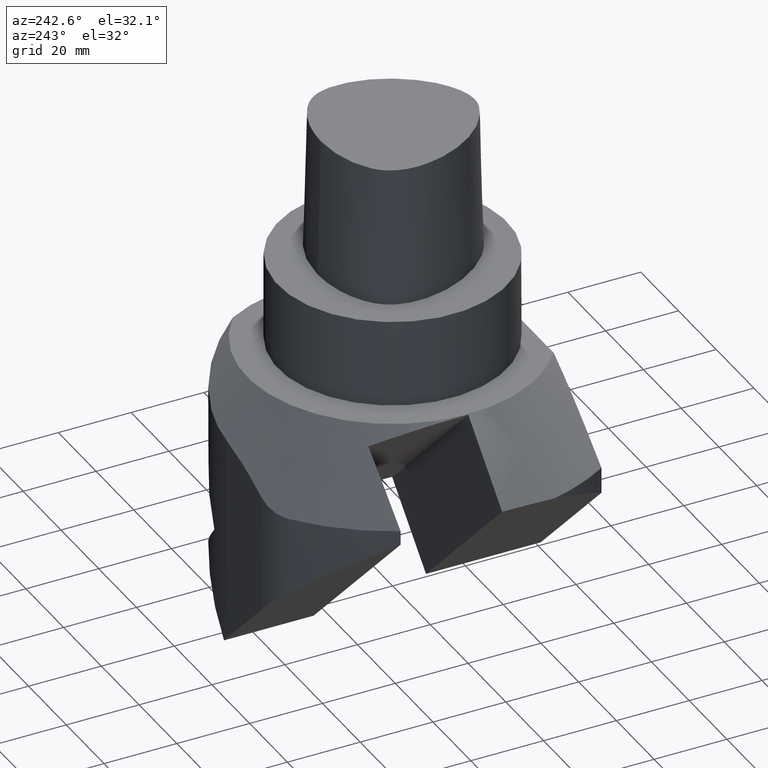
[diagram: clean part render]
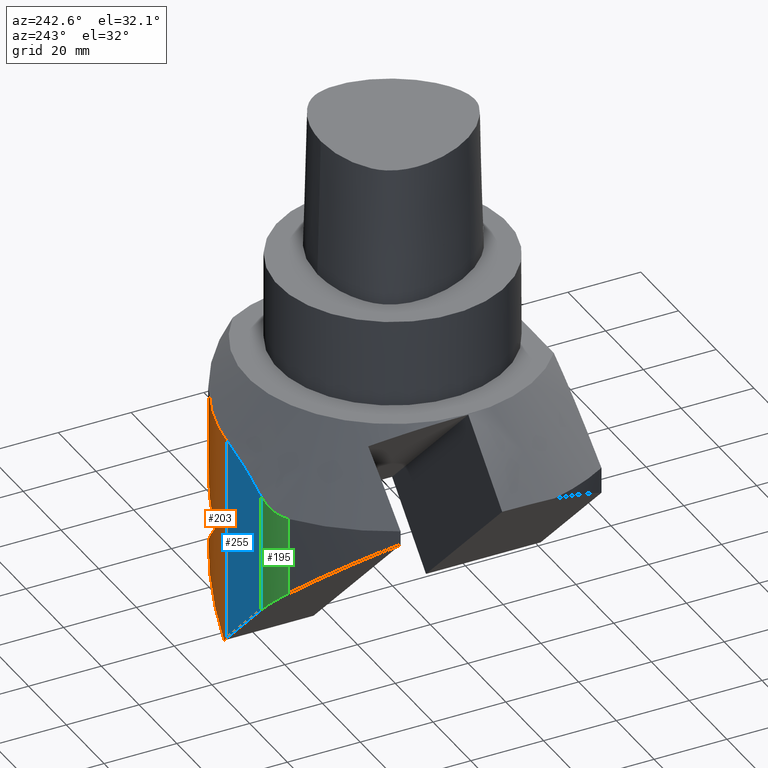
[diagram: same view with three faces highlighted in distinct colors, each labeled with its STEP entity id]
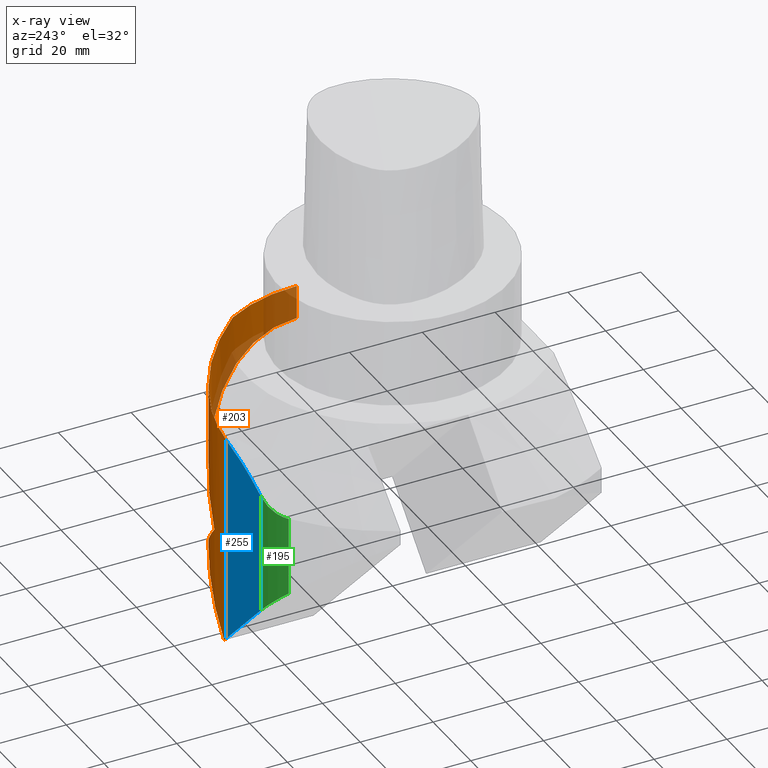
[diagram: x-ray of the same camera — body ghosted, the three highlighted faces saturated]
A machine part, auxiliary view with three faces highlighted in distinct colors.
The next image is the same camera in x-ray (body ghosted, the three faces saturated) — at least one of them is partly hidden behind the body in this view.
Their STEP definitions:

[orange] entity #203 — the highlighted cylindrical surface (partial cylindrical patch) has radius 40 mm, axis along (0, 0, 1).
#119=EDGE_CURVE('Unnamed[1]',#338,#339,#340,.T.);
#141=EDGE_CURVE('Unnamed[1]',#378,#379,#380,.T.);
#149=EDGE_CURVE('Unnamed[1]',#390,#338,#391,.T.);
#203=ADVANCED_FACE('Unnamed[1]',(#463),#464,.T.);
#213=EDGE_CURVE('Unnamed[1]',#347,#339,#476,.T.);
#217=EDGE_CURVE('Unnamed[1]',#358,#378,#480,.T.);
#246=EDGE_CURVE('Unnamed[1]',#358,#489,#517,.T.);
#291=EDGE_CURVE('Unnamed[1]',#379,#390,#568,.T.);
#305=EDGE_CURVE('Unnamed[1]',#489,#347,#585,.T.);
#338=VERTEX_POINT('',#615);
#339=VERTEX_POINT('',#616);
#340=LINE('',#617,#618);
#347=VERTEX_POINT('',#627);
#358=VERTEX_POINT('',#651);
#378=VERTEX_POINT('',#680);
#379=VERTEX_POINT('',#681);
#380=ELLIPSE('',#682,56.568542494924,40.0);
#390=VERTEX_POINT('',#695);
#391=ELLIPSE('',#696,56.568542494924,40.0);
#463=FACE_OUTER_BOUND('',#959,.T.);
#464=CYLINDRICAL_SURFACE('',#960,40.0);
#476=B_SPLINE_CURVE_WITH_KNOTS('',3,(#980,#981,#982,#983,#984,#985,#986,#987,#988,#989,#990,#991,#992,#993,#994,#995,#996,#997,#998,#999,#1000,#1001,#1002,#1003),.UNSPECIFIED.,.F.,.F.,(4,2,2,2,2,2,2,2,2,2,2,4),(0.0,4.2961732998113,8.5923465996226,12.8885198994339,17.1846931992452,21.4808664990565,25.7770397988678,30.0732130986791,34.3693863984904,39.0400908339437,43.7107952693969,48.3814997048502),.UNSPECIFIED.);
#480=ELLIPSE('',#1010,56.568542494924,40.0);
#489=VERTEX_POINT('',#1023);
#517=LINE('',#1082,#1083);
#568=ELLIPSE('',#1200,56.5685424949241,40.0);
#585=CIRCLE('',#1241,40.0);
#615=CARTESIAN_POINT('',(-8.50066227141229,50.0000000000001,-91.5704055404531));
#616=CARTESIAN_POINT('',(-8.50066227141228,50.0000000000001,-34.717465029836));
#617=CARTESIAN_POINT('',(-8.50066227141231,50.0,-225.691832081474));
#618=VECTOR('',#1256,1.0);
#627=CARTESIAN_POINT('',(25.8132968265739,30.5560747960727,-24.0));
#651=CARTESIAN_POINT('',(31.4993377285877,10.0000000000001,-33.2163910314101));
#680=CARTESIAN_POINT('',(-0.353553386863263,49.1615195928773,-65.0692821468613));
#681=CARTESIAN_POINT('',(10.253271031921,45.331147528125,-75.6756611562134));
#682=AXIS2_PLACEMENT_3D('',#1285,#1286,#1287);
#695=CARTESIAN_POINT('',(-7.07106781186543,49.9744450828431,-93.0));
#696=AXIS2_PLACEMENT_3D('',#1309,#1310,#1311);
#959=EDGE_LOOP('',(#1395,#1396,#1397,#1398,#1399,#1400,#1401,#1402));
#960=AXIS2_PLACEMENT_3D('',#1403,#1404,#1405);
#980=CARTESIAN_POINT('',(27.2899994653183,27.8613698367997,-23.0));
#981=CARTESIAN_POINT('',(26.6821631260145,29.0793539561638,-23.444791093086));
#982=CARTESIAN_POINT('',(26.0014987980239,30.2870334739513,-23.8951535010006));
#983=CARTESIAN_POINT('',(24.4975679152565,32.6512615582547,-24.7979981320429));
#984=CARTESIAN_POINT('',(23.6743113512605,33.8078153101763,-25.2504834187411));
#985=CARTESIAN_POINT('',(21.8938626107387,36.0425393210084,-26.1493398444607));
#986=CARTESIAN_POINT('',(20.9365827414916,37.1208325783875,-26.5957640263258));
#987=CARTESIAN_POINT('',(18.9014485834316,39.1755938138761,-27.4752149391517));
#988=CARTESIAN_POINT('',(17.8235979041734,40.1520627474879,-27.9082477905063));
#989=CARTESIAN_POINT('',(15.5652832260598,41.9834920679915,-28.754409218942));
#990=CARTESIAN_POINT('',(14.3837379999835,42.8393289195117,-29.1679489640365));
#991=CARTESIAN_POINT('',(11.9371929733699,44.4152781865522,-29.9701762555314));
#992=CARTESIAN_POINT('',(10.672191195817,45.1353845712279,-30.3588696200201));
#993=CARTESIAN_POINT('',(8.08351076680591,46.4288177612844,-31.1065223970256));
#994=CARTESIAN_POINT('',(6.75968047891064,47.0022064048412,-31.4655288567956));
#995=CARTESIAN_POINT('',(4.08080524351999,47.9966842613118,-32.149874496942));
#996=CARTESIAN_POINT('',(2.72575532469972,48.4177577236482,-32.4752171053672));
#997=CARTESIAN_POINT('',(-0.103438998362463,49.1382065141407,-33.1159123460463));
#998=CARTESIAN_POINT('',(-1.6218950370337,49.4350104665986,-33.4379115971524));
#999=CARTESIAN_POINT('',(-4.71652690654261,49.8511958252841,-34.0504110973686));
#1000=CARTESIAN_POINT('',(-6.29269787981296,49.9705948079215,-34.3409239460243));
#1001=CARTESIAN_POINT('',(-9.46945756842184,50.0198074910734,-34.8842018691073));
#1002=CARTESIAN_POINT('',(-11.0702841558892,49.9496390050442,-35.1370186094616));
#1003=CARTESIAN_POINT('',(-12.6667374612404,49.7824561523382,-35.36865949654));
#1010=AXIS2_PLACEMENT_3D('',#1413,#1414,#1415);
#1023=CARTESIAN_POINT('',(31.4993377285877,10.0000000000001,-24.0));
#1082=CARTESIAN_POINT('',(31.4993377285877,10.0,-225.691832081474));
#1083=VECTOR('',#1452,1.0);
#1200=AXIS2_PLACEMENT_3D('',#1512,#1513,#1514);
#1241=AXIS2_PLACEMENT_3D('',#1537,#1538,#1539);
#1256=DIRECTION('',(1.81140886498535E-016,4.33419372587335E-016,1.0));
#1285=CARTESIAN_POINT('',(-8.5006622714123,10.0000000000001,-56.9221732623122));
#1286=DIRECTION('',(-0.70710678118655,-2.71158374330523E-017,-0.707106781186545));
#1287=DIRECTION('',(-0.707106781186545,5.22962791512997E-016,0.70710678118655));
#1309=CARTESIAN_POINT('',(-8.5006622714123,10.0000000000001,-91.5704055404531));
#1310=DIRECTION('',(0.70710678118655,2.71158374330523E-017,0.707106781186545));
#1311=DIRECTION('',(-0.707106781186545,5.22962791512997E-016,0.70710678118655));
#1395=ORIENTED_EDGE('',*,*,#217,.T.);
#1396=ORIENTED_EDGE('',*,*,#141,.T.);
#1397=ORIENTED_EDGE('',*,*,#291,.T.);
#1398=ORIENTED_EDGE('',*,*,#149,.T.);
#1399=ORIENTED_EDGE('',*,*,#119,.T.);
#1400=ORIENTED_EDGE('',*,*,#213,.F.);
#1401=ORIENTED_EDGE('',*,*,#305,.F.);
#1402=ORIENTED_EDGE('',*,*,#246,.F.);
#1403=CARTESIAN_POINT('',(-8.50066227141233,10.0,-225.691832081474));
#1404=DIRECTION('',(1.81140886498535E-016,4.33419372587335E-016,1.0));
#1405=DIRECTION('',(3.06161699786838E-016,1.0,-4.33419372587335E-016));
#1413=CARTESIAN_POINT('',(-8.5006622714123,10.0000000000001,-73.2163910314103));
#1414=DIRECTION('',(-0.70710678118655,2.86902654303701E-016,0.707106781186546));
#1415=DIRECTION('',(-0.707106781186545,-8.99847633952517E-017,-0.707106781186549));
#1452=DIRECTION('',(1.81140886498535E-016,4.33419372587335E-016,1.0));
#1512=CARTESIAN_POINT('',(-8.5006622714123,10.0000000000001,-94.4295944595469));
#1513=DIRECTION('',(-0.70710678118655,2.86902654303701E-016,0.707106781186544));
#1514=DIRECTION('',(-0.707106781186544,-8.99847633952524E-017,-0.70710678118655));
#1537=CARTESIAN_POINT('',(-8.50066227141229,10.0000000000001,-24.0));
#1538=DIRECTION('',(-1.22464679914735E-016,2.22044604925031E-016,1.0));
#1539=DIRECTION('',(3.06161699786838E-016,1.0,-2.22044604925031E-016));

[blue] entity #255 — the highlighted planar face has unit normal (-0, -1, 0).
#119=EDGE_CURVE('Unnamed[1]',#338,#339,#340,.T.);
#160=EDGE_CURVE('Unnamed[1]',#338,#406,#407,.T.);
#179=EDGE_CURVE('Unnamed[1]',#339,#432,#433,.T.);
#250=EDGE_CURVE('Unnamed[1]',#406,#432,#521,.T.);
#255=ADVANCED_FACE('Unnamed[1]',(#526),#527,.F.);
#338=VERTEX_POINT('',#615);
#339=VERTEX_POINT('',#616);
#340=LINE('',#617,#618);
#406=VERTEX_POINT('',#718);
#407=LINE('',#719,#720);
#432=VERTEX_POINT('',#842);
#433=(B_SPLINE_CURVE(2,(#844,#845,#846),.UNSPECIFIED.,.F.,.F.)B_SPLINE_CURVE_WITH_KNOTS((3,3),(0.0,65.1766829472009),.UNSPECIFIED.)RATIONAL_B_SPLINE_CURVE((1.0,1.18,1.0))BOUNDED_CURVE()REPRESENTATION_ITEM('')GEOMETRIC_REPRESENTATION_ITEM()CURVE());
#521=LINE('',#1091,#1092);
#526=FACE_OUTER_BOUND('',#1100,.T.);
#527=PLANE('',#1101);
#615=CARTESIAN_POINT('',(-8.50066227141229,50.0000000000001,-91.5704055404531));
#616=CARTESIAN_POINT('',(-8.50066227141228,50.0000000000001,-34.717465029836));
#617=CARTESIAN_POINT('',(-8.50066227141231,50.0,-225.691832081474));
#618=VECTOR('',#1256,1.0);
#718=CARTESIAN_POINT('',(-26.665245523359,50.0000000000001,-73.4058222885063));
#719=CARTESIAN_POINT('',(10.7328021636064,50.0000000000001,-110.803869975472));
#720=VECTOR('',#1327,1.0);
#842=CARTESIAN_POINT('',(-26.665245523359,50.0000000000001,-40.6659979072198));
#844=CARTESIAN_POINT('',(31.3209195267315,50.0000000000001,-43.0000000000001));
#845=CARTESIAN_POINT('',(1.24145974672887E-014,50.0000000000001,-26.3728813559324));
#846=CARTESIAN_POINT('',(-31.3209195267314,50.0000000000001,-43.0000000000001));
#1091=CARTESIAN_POINT('',(-26.665245523359,50.0,-225.691832081474));
#1092=VECTOR('',#1453,1.0);
#1100=EDGE_LOOP('',(#1456,#1457,#1458,#1459));
#1101=AXIS2_PLACEMENT_3D('',#1460,#1461,#1462);
#1256=DIRECTION('',(1.81140886498535E-016,4.33419372587335E-016,1.0));
#1327=DIRECTION('',(-0.707106781186545,4.36367185889448E-016,0.70710678118655));
#1453=DIRECTION('',(1.81140886498535E-016,4.33419372587335E-016,1.0));
#1456=ORIENTED_EDGE('',*,*,#160,.T.);
#1457=ORIENTED_EDGE('',*,*,#250,.T.);
#1458=ORIENTED_EDGE('',*,*,#179,.F.);
#1459=ORIENTED_EDGE('',*,*,#119,.F.);
#1460=CARTESIAN_POINT('',(-17.5829538973857,50.0,-225.691832081474));
#1461=DIRECTION('',(-1.83697019872103E-016,-1.0,4.33419372587335E-016));
#1462=DIRECTION('',(1.0,-1.83697019872103E-016,1.22464679914735E-016));

[green] entity #195 — the highlighted cylindrical surface (partial cylindrical patch) has radius 15 mm, axis along (0, 0, 1).
#167=EDGE_CURVE('Unnamed[1]',#343,#409,#417,.T.);
#195=ADVANCED_FACE('Unnamed[1]',(#452),#453,.T.);
#250=EDGE_CURVE('Unnamed[1]',#406,#432,#521,.T.);
#271=EDGE_CURVE('Unnamed[1]',#432,#343,#546,.T.);
#273=EDGE_CURVE('Unnamed[1]',#406,#409,#548,.T.);
#343=VERTEX_POINT('',#622);
#406=VERTEX_POINT('',#718);
#409=VERTEX_POINT('',#723);
#417=LINE('',#733,#734);
#432=VERTEX_POINT('',#842);
#452=FACE_OUTER_BOUND('',#944,.T.);
#453=CYLINDRICAL_SURFACE('',#945,15.0);
#521=LINE('',#1091,#1092);
#546=B_SPLINE_CURVE_WITH_KNOTS('',3,(#1130,#1131,#1132,#1133,#1134,#1135,#1136,#1137,#1138,#1139,#1140,#1141,#1142,#1143),.UNSPECIFIED.,.F.,.F.,(4,2,2,2,2,2,4),(25.5305772808362,27.5208219681778,29.5110666555194,31.1814105093336,32.8517543631478,34.522098216962,36.1924420707762),.UNSPECIFIED.);
#548=ELLIPSE('',#1146,21.2132034355965,15.0);
#622=CARTESIAN_POINT('',(-35.6541898930139,47.0082837707665,-43.0000000000002));
#718=CARTESIAN_POINT('',(-26.665245523359,50.0000000000001,-73.4058222885063));
#723=CARTESIAN_POINT('',(-35.6541898930146,47.0082837707659,-64.4168779188507));
#733=CARTESIAN_POINT('',(-35.6541898930146,47.0082837707659,-225.691832081474));
#734=VECTOR('',#1337,1.0);
#842=CARTESIAN_POINT('',(-26.665245523359,50.0000000000001,-40.6659979072198));
#944=EDGE_LOOP('',(#1377,#1378,#1379,#1380));
#945=AXIS2_PLACEMENT_3D('',#1381,#1382,#1383);
#1091=CARTESIAN_POINT('',(-26.665245523359,50.0,-225.691832081474));
#1092=VECTOR('',#1453,1.0);
#1130=CARTESIAN_POINT('',(-25.6609083706589,49.9663391276461,-40.1704305148741));
#1131=CARTESIAN_POINT('',(-26.2982878759604,50.0091113379101,-40.4996590354571));
#1132=CARTESIAN_POINT('',(-26.9490019213973,50.0112747286293,-40.806991034404));
#1133=CARTESIAN_POINT('',(-28.2409421908317,49.9310437236412,-41.3612924278872));
#1134=CARTESIAN_POINT('',(-28.8821693204896,49.8485730923342,-41.608248674316));
#1135=CARTESIAN_POINT('',(-30.0171298560223,49.6302087312511,-41.9994779002425));
#1136=CARTESIAN_POINT('',(-30.5583842725864,49.4972931565841,-42.1677820020892));
#1137=CARTESIAN_POINT('',(-31.652539640496,49.1582108889916,-42.4645785699494));
#1138=CARTESIAN_POINT('',(-32.2054276351395,48.951982407167,-42.5930482055045));
#1139=CARTESIAN_POINT('',(-33.2892228300164,48.4712417950096,-42.7987481582133));
#1140=CARTESIAN_POINT('',(-33.8206142130225,48.1964737240837,-42.876059199236));
#1141=CARTESIAN_POINT('',(-34.8323519201604,47.5954195221414,-42.9768854842985));
#1142=CARTESIAN_POINT('',(-35.3126970517297,47.2691314877365,-43.0004013484086));
#1143=CARTESIAN_POINT('',(-35.7555872155457,46.9317093460784,-43.0004013484086));
#1146=AXIS2_PLACEMENT_3D('',#1488,#1489,#1490);
#1337=DIRECTION('',(-1.81140886498535E-016,-4.33419372587335E-016,-1.0));
#1377=ORIENTED_EDGE('',*,*,#273,.T.);
#1378=ORIENTED_EDGE('',*,*,#167,.F.);
#1379=ORIENTED_EDGE('',*,*,#271,.F.);
#1380=ORIENTED_EDGE('',*,*,#250,.F.);
#1381=CARTESIAN_POINT('',(-26.6652455233591,35.0,-225.691832081474));
#1382=DIRECTION('',(1.81140886498535E-016,4.33419372587335E-016,1.0));
#1383=DIRECTION('',(3.06161699786838E-016,1.0,-4.33419372587335E-016));
#1453=DIRECTION('',(1.81140886498535E-016,4.33419372587335E-016,1.0));
#1488=CARTESIAN_POINT('',(-26.665245523359,35.0000000000001,-73.4058222885063));
#1489=DIRECTION('',(0.70710678118655,2.71158374330523E-017,0.707106781186545));
#1490=DIRECTION('',(-0.707106781186545,5.22962791512997E-016,0.70710678118655));